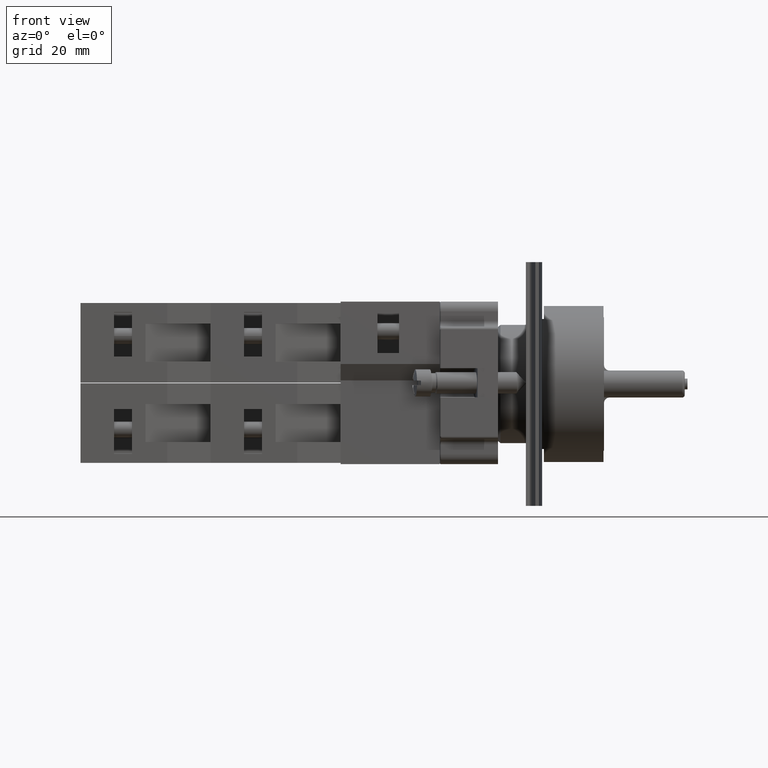
[diagram: clean part render]
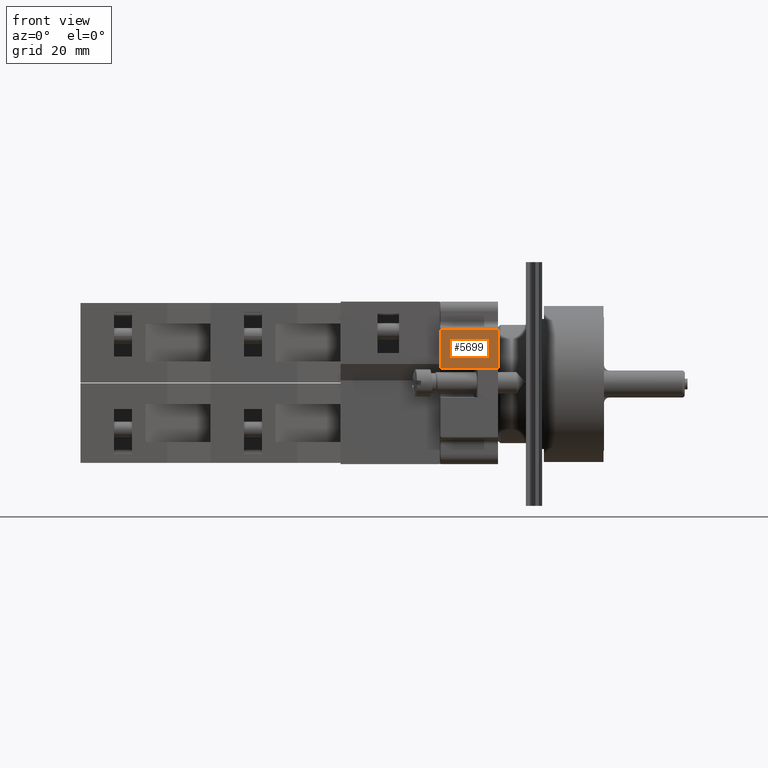
[diagram: same view with one face highlighted and labeled with its STEP entity id]
A machine part, front view. The second image highlights one B-rep face of the part: STEP entity #5699.
In plain terms, the highlighted planar face has unit normal (0, -1, -0).
Its self-contained STEP definition (entity closure, byte-faithful):
#673=CARTESIAN_POINT('',(-18.982780308276109,0.267864828157553,10.500000000000000));
#674=VERTEX_POINT('',#673);
#727=CARTESIAN_POINT('',(-18.982780308276109,7.467864828157554,10.500000000000000));
#728=VERTEX_POINT('',#727);
#729=CARTESIAN_POINT('',(-18.982780308276109,7.467864828157554,10.500000000000000));
#730=DIRECTION('',(0.0,-1.0,0.0));
#731=VECTOR('',#730,7.200000000000001);
#732=LINE('',#729,#731);
#733=EDGE_CURVE('',#728,#674,#732,.T.);
#4203=CARTESIAN_POINT('',(-18.982780308276109,0.267864828157553,0.0));
#4204=VERTEX_POINT('',#4203);
#4212=CARTESIAN_POINT('',(-18.982780308276109,7.467864828157554,0.0));
#4213=VERTEX_POINT('',#4212);
#4214=CARTESIAN_POINT('',(-18.982780308276109,7.467864828157554,0.0));
#4215=DIRECTION('',(0.0,-1.0,0.0));
#4216=VECTOR('',#4215,7.200000000000001);
#4217=LINE('',#4214,#4216);
#4218=EDGE_CURVE('',#4213,#4204,#4217,.T.);
#5672=CARTESIAN_POINT('',(-18.982780308276109,0.267864828157553,0.0));
#5673=DIRECTION('',(0.0,0.0,1.0));
#5674=VECTOR('',#5673,10.500000000000000);
#5675=LINE('',#5672,#5674);
#5676=EDGE_CURVE('',#4204,#674,#5675,.T.);
#5683=CARTESIAN_POINT('',(-18.982780308276109,0.267864828157553,0.0));
#5684=DIRECTION('',(-1.0,0.0,0.0));
#5685=DIRECTION('',(0.0,0.0,1.0));
#5686=AXIS2_PLACEMENT_3D('',#5683,#5684,#5685);
#5687=PLANE('',#5686);
#5688=ORIENTED_EDGE('',*,*,#733,.F.);
#5689=CARTESIAN_POINT('',(-18.982780308276109,7.467864828157554,0.0));
#5690=DIRECTION('',(0.0,0.0,1.0));
#5691=VECTOR('',#5690,10.500000000000000);
#5692=LINE('',#5689,#5691);
#5693=EDGE_CURVE('',#4213,#728,#5692,.T.);
#5694=ORIENTED_EDGE('',*,*,#5693,.F.);
#5695=ORIENTED_EDGE('',*,*,#4218,.T.);
#5696=ORIENTED_EDGE('',*,*,#5676,.T.);
#5697=EDGE_LOOP('',(#5688,#5694,#5695,#5696));
#5698=FACE_OUTER_BOUND('',#5697,.T.);
#5699=ADVANCED_FACE('',(#5698),#5687,.T.);